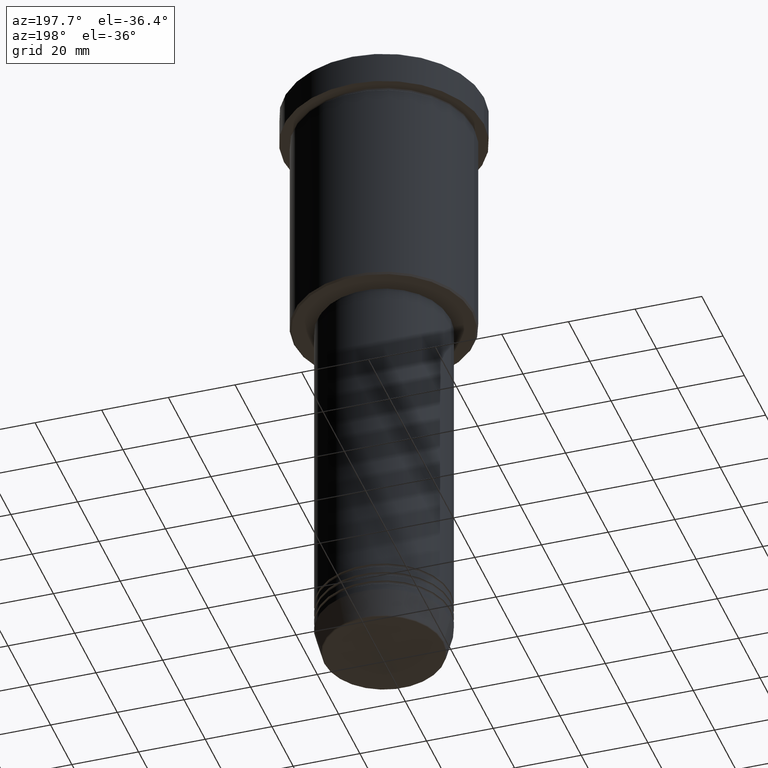
[diagram: clean part render]
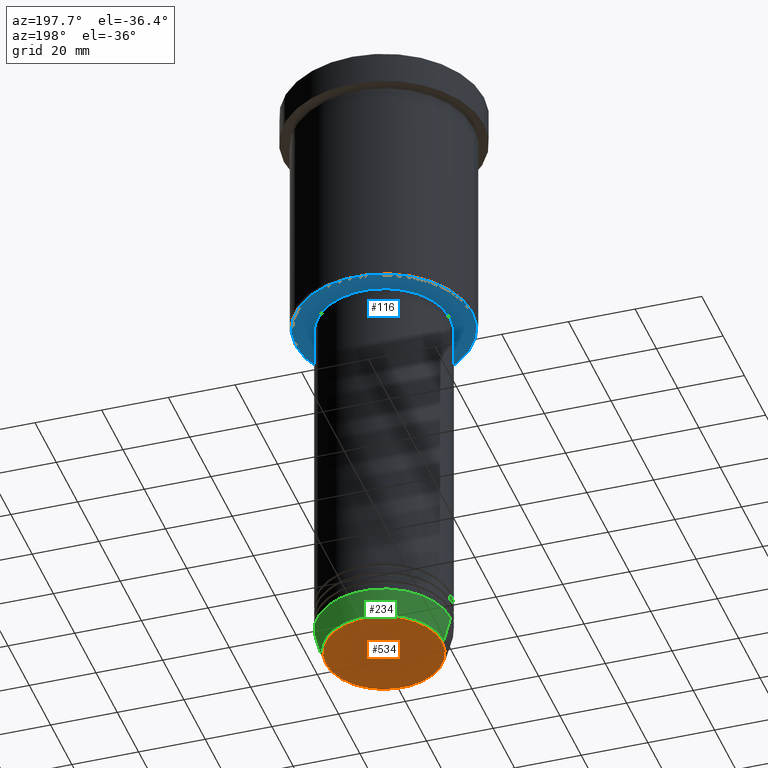
[diagram: same view with three faces highlighted in distinct colors, each labeled with its STEP entity id]
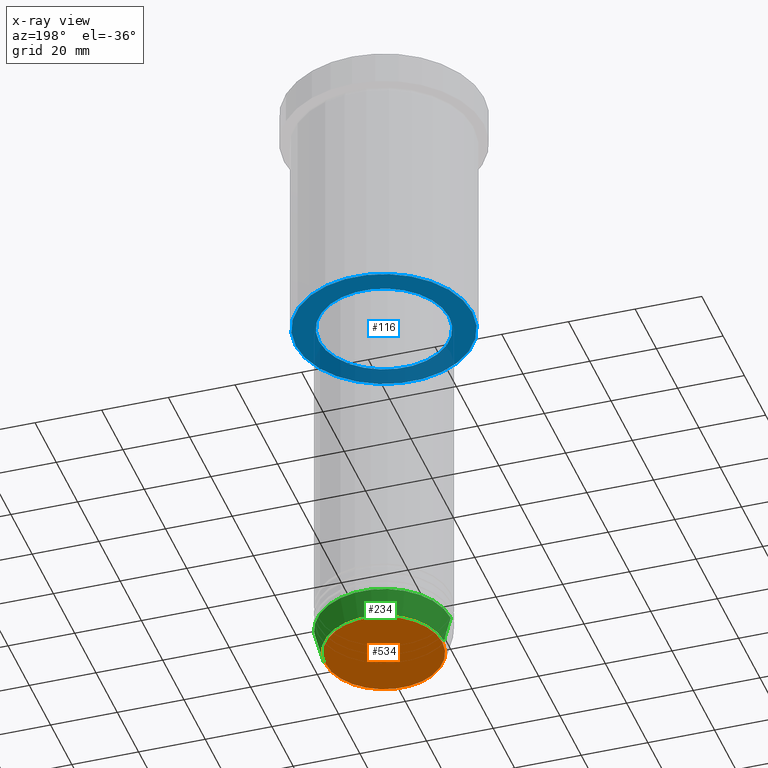
[diagram: x-ray of the same camera — body ghosted, the three highlighted faces saturated]
A machine part, auxiliary view with three faces highlighted in distinct colors.
The next image is the same camera in x-ray (body ghosted, the three faces saturated) — at least one of them is partly hidden behind the body in this view.
Their STEP definitions:

[orange] entity #534 — the highlighted planar face has unit normal (0, -0, 1).
#12 = CIRCLE ( 'NONE', #297, 17.47274296656154036 ) ;
#16 = ORIENTED_EDGE ( 'NONE', *, *, #765, .T. ) ;
#26 = EDGE_CURVE ( 'NONE', #722, #860, #241, .T. ) ;
#57 = DIRECTION ( 'NONE',  ( 1.000000000000000000, 0.000000000000000000, 0.000000000000000000 ) ) ;
#72 = DIRECTION ( 'NONE',  ( 1.000000000000000000, 0.000000000000000000, 0.000000000000000000 ) ) ;
#162 = CARTESIAN_POINT ( 'NONE',  ( 0.000000000000000000, 0.000000000000000000, -191.0000000000000000 ) ) ;
#179 = CARTESIAN_POINT ( 'NONE',  ( 0.000000000000000000, 0.000000000000000000, -191.0000000000000000 ) ) ;
#191 = DIRECTION ( 'NONE',  ( 0.000000000000000000, -0.000000000000000000, 1.000000000000000000 ) ) ;
#241 = CIRCLE ( 'NONE', #386, 17.47274296656154036 ) ;
#269 = CARTESIAN_POINT ( 'NONE',  ( 17.47274296656154036, 0.000000000000000000, -191.0000000000000000 ) ) ;
#270 = DIRECTION ( 'NONE',  ( 1.000000000000000000, 0.000000000000000000, 0.000000000000000000 ) ) ;
#297 = AXIS2_PLACEMENT_3D ( 'NONE', #162, #430, #57 ) ;
#386 = AXIS2_PLACEMENT_3D ( 'NONE', #179, #447, #270 ) ;
#430 = DIRECTION ( 'NONE',  ( 0.000000000000000000, 0.000000000000000000, -1.000000000000000000 ) ) ;
#447 = DIRECTION ( 'NONE',  ( 0.000000000000000000, 0.000000000000000000, -1.000000000000000000 ) ) ;
#534 = ADVANCED_FACE ( 'NONE', ( #894 ), #890, .F. ) ;
#579 = ORIENTED_EDGE ( 'NONE', *, *, #26, .T. ) ;
#628 = CARTESIAN_POINT ( 'NONE',  ( 0.000000000000000000, 0.000000000000000000, -191.0000000000000000 ) ) ;
#675 = EDGE_LOOP ( 'NONE', ( #16, #579 ) ) ;
#722 = VERTEX_POINT ( 'NONE', #948 ) ;
#765 = EDGE_CURVE ( 'NONE', #860, #722, #12, .T. ) ;
#860 = VERTEX_POINT ( 'NONE', #269 ) ;
#890 = PLANE ( 'NONE',  #925 ) ;
#894 = FACE_OUTER_BOUND ( 'NONE', #675, .T. ) ;
#925 = AXIS2_PLACEMENT_3D ( 'NONE', #628, #191, #72 ) ;
#948 = CARTESIAN_POINT ( 'NONE',  ( -17.47274296656154036, 2.169366823916868503E-15, -191.0000000000000000 ) ) ;

[blue] entity #116 — the highlighted planar face has unit normal (0, 0, -1).
#42 = FACE_OUTER_BOUND ( 'NONE', #560, .T. ) ;
#68 = AXIS2_PLACEMENT_3D ( 'NONE', #515, #889, #799 ) ;
#73 = CARTESIAN_POINT ( 'NONE',  ( -26.50000000000001066, 3.275930187719170735E-15, -76.00000000000001421 ) ) ;
#116 = ADVANCED_FACE ( 'NONE', ( #42, #500 ), #1066, .T. ) ;
#139 = DIRECTION ( 'NONE',  ( -1.000000000000000000, 0.000000000000000000, 0.000000000000000000 ) ) ;
#165 = DIRECTION ( 'NONE',  ( 1.000000000000000000, 0.000000000000000000, 0.000000000000000000 ) ) ;
#203 = VERTEX_POINT ( 'NONE', #1109 ) ;
#223 = AXIS2_PLACEMENT_3D ( 'NONE', #981, #334, #139 ) ;
#257 = DIRECTION ( 'NONE',  ( -1.000000000000000000, 0.000000000000000000, 0.000000000000000000 ) ) ;
#261 = AXIS2_PLACEMENT_3D ( 'NONE', #443, #807, #165 ) ;
#307 = CARTESIAN_POINT ( 'NONE',  ( 0.000000000000000000, 27.00000000000000355, -76.00000000000001421 ) ) ;
#334 = DIRECTION ( 'NONE',  ( 0.000000000000000000, 0.000000000000000000, -1.000000000000000000 ) ) ;
#335 = DIRECTION ( 'NONE',  ( 0.000000000000000000, 0.000000000000000000, -1.000000000000000000 ) ) ;
#360 = VERTEX_POINT ( 'NONE', #73 ) ;
#382 = ORIENTED_EDGE ( 'NONE', *, *, #607, .T. ) ;
#387 = AXIS2_PLACEMENT_3D ( 'NONE', #307, #875, #588 ) ;
#419 = CARTESIAN_POINT ( 'NONE',  ( 26.50000000000001066, 0.000000000000000000, -76.00000000000001421 ) ) ;
#442 = CIRCLE ( 'NONE', #223, 26.50000000000001066 ) ;
#443 = CARTESIAN_POINT ( 'NONE',  ( 0.000000000000000000, 0.000000000000000000, -76.00000000000001421 ) ) ;
#459 = EDGE_CURVE ( 'NONE', #763, #360, #442, .T. ) ;
#500 = FACE_BOUND ( 'NONE', #1171, .T. ) ;
#515 = CARTESIAN_POINT ( 'NONE',  ( 0.000000000000000000, 0.000000000000000000, -76.00000000000001421 ) ) ;
#560 = EDGE_LOOP ( 'NONE', ( #660, #382 ) ) ;
#588 = DIRECTION ( 'NONE',  ( -1.000000000000000000, 0.000000000000000000, -0.000000000000000000 ) ) ;
#593 = CARTESIAN_POINT ( 'NONE',  ( 0.000000000000000000, 0.000000000000000000, -76.00000000000001421 ) ) ;
#607 = EDGE_CURVE ( 'NONE', #360, #763, #986, .T. ) ;
#660 = ORIENTED_EDGE ( 'NONE', *, *, #459, .T. ) ;
#755 = CIRCLE ( 'NONE', #68, 19.50000000000000000 ) ;
#763 = VERTEX_POINT ( 'NONE', #419 ) ;
#799 = DIRECTION ( 'NONE',  ( 1.000000000000000000, 0.000000000000000000, 0.000000000000000000 ) ) ;
#807 = DIRECTION ( 'NONE',  ( -0.000000000000000000, -0.000000000000000000, 1.000000000000000000 ) ) ;
#839 = CARTESIAN_POINT ( 'NONE',  ( -19.50000000000000000, 2.388061258337338939E-15, -76.00000000000001421 ) ) ;
#875 = DIRECTION ( 'NONE',  ( 0.000000000000000000, 0.000000000000000000, -1.000000000000000000 ) ) ;
#889 = DIRECTION ( 'NONE',  ( -0.000000000000000000, -0.000000000000000000, 1.000000000000000000 ) ) ;
#899 = EDGE_CURVE ( 'NONE', #203, #1055, #755, .T. ) ;
#964 = EDGE_CURVE ( 'NONE', #1055, #203, #1160, .T. ) ;
#981 = CARTESIAN_POINT ( 'NONE',  ( 0.000000000000000000, 0.000000000000000000, -76.00000000000001421 ) ) ;
#986 = CIRCLE ( 'NONE', #1004, 26.50000000000001066 ) ;
#1001 = ORIENTED_EDGE ( 'NONE', *, *, #964, .T. ) ;
#1004 = AXIS2_PLACEMENT_3D ( 'NONE', #593, #335, #257 ) ;
#1055 = VERTEX_POINT ( 'NONE', #839 ) ;
#1066 = PLANE ( 'NONE',  #387 ) ;
#1109 = CARTESIAN_POINT ( 'NONE',  ( 19.50000000000000000, 0.000000000000000000, -76.00000000000001421 ) ) ;
#1119 = ORIENTED_EDGE ( 'NONE', *, *, #899, .T. ) ;
#1160 = CIRCLE ( 'NONE', #261, 19.50000000000000000 ) ;
#1171 = EDGE_LOOP ( 'NONE', ( #1119, #1001 ) ) ;

[green] entity #234 — the highlighted conical surface has half-angle 15 deg.
#5 = DIRECTION ( 'NONE',  ( 1.000000000000000000, 0.000000000000000000, 0.000000000000000000 ) ) ;
#44 = DIRECTION ( 'NONE',  ( 1.000000000000000000, 0.000000000000000000, 0.000000000000000000 ) ) ;
#76 = CARTESIAN_POINT ( 'NONE',  ( 17.95570587970607690, 0.000000000000000000, -190.6294095225512706 ) ) ;
#102 = CARTESIAN_POINT ( 'NONE',  ( 0.000000000000000000, 0.000000000000000000, -183.0000000000000284 ) ) ;
#121 = CARTESIAN_POINT ( 'NONE',  ( 20.00000000000000000, 0.000000000000000000, -183.0000000000000284 ) ) ;
#190 = DIRECTION ( 'NONE',  ( 1.000000000000000000, 0.000000000000000000, 0.000000000000000000 ) ) ;
#234 = ADVANCED_FACE ( 'NONE', ( #620 ), #826, .T. ) ;
#272 = CARTESIAN_POINT ( 'NONE',  ( -17.95570587970607690, 2.324116685748020977E-15, -190.6294095225512706 ) ) ;
#276 = VECTOR ( 'NONE', #474, 1000.000000000000000 ) ;
#291 = LINE ( 'NONE', #121, #276 ) ;
#305 = CARTESIAN_POINT ( 'NONE',  ( -20.00000000000000000, 2.449293598294706513E-15, -183.0000000000000284 ) ) ;
#315 = CIRCLE ( 'NONE', #601, 20.00000000000000000 ) ;
#323 = EDGE_CURVE ( 'NONE', #868, #546, #291, .T. ) ;
#341 = AXIS2_PLACEMENT_3D ( 'NONE', #638, #485, #44 ) ;
#410 = VECTOR ( 'NONE', #661, 1000.000000000000000 ) ;
#456 = DIRECTION ( 'NONE',  ( -0.000000000000000000, -0.000000000000000000, 1.000000000000000000 ) ) ;
#474 = DIRECTION ( 'NONE',  ( 0.2588190451025213501, 0.000000000000000000, 0.9659258262890680902 ) ) ;
#485 = DIRECTION ( 'NONE',  ( -0.000000000000000000, -0.000000000000000000, 1.000000000000000000 ) ) ;
#488 = VERTEX_POINT ( 'NONE', #272 ) ;
#546 = VERTEX_POINT ( 'NONE', #901 ) ;
#601 = AXIS2_PLACEMENT_3D ( 'NONE', #1168, #993, #190 ) ;
#619 = VERTEX_POINT ( 'NONE', #737 ) ;
#620 = FACE_OUTER_BOUND ( 'NONE', #1137, .T. ) ;
#638 = CARTESIAN_POINT ( 'NONE',  ( 0.000000000000000000, 0.000000000000000000, -190.6294095225512706 ) ) ;
#652 = ORIENTED_EDGE ( 'NONE', *, *, #779, .T. ) ;
#661 = DIRECTION ( 'NONE',  ( -0.2588190451025213501, 3.169619151431772337E-17, 0.9659258262890680902 ) ) ;
#716 = ORIENTED_EDGE ( 'NONE', *, *, #923, .F. ) ;
#737 = CARTESIAN_POINT ( 'NONE',  ( -20.00000000000000000, 2.449293598294706513E-15, -183.0000000000000284 ) ) ;
#779 = EDGE_CURVE ( 'NONE', #868, #488, #1111, .T. ) ;
#826 = CONICAL_SURFACE ( 'NONE', #1158, 20.00000000000000000, 0.2617993877991500740 ) ;
#861 = ORIENTED_EDGE ( 'NONE', *, *, #323, .F. ) ;
#868 = VERTEX_POINT ( 'NONE', #76 ) ;
#901 = CARTESIAN_POINT ( 'NONE',  ( 20.00000000000000000, 0.000000000000000000, -183.0000000000000284 ) ) ;
#923 = EDGE_CURVE ( 'NONE', #546, #619, #315, .T. ) ;
#993 = DIRECTION ( 'NONE',  ( -0.000000000000000000, -0.000000000000000000, 1.000000000000000000 ) ) ;
#1111 = CIRCLE ( 'NONE', #341, 17.95570587970607690 ) ;
#1112 = EDGE_CURVE ( 'NONE', #488, #619, #1133, .T. ) ;
#1133 = LINE ( 'NONE', #305, #410 ) ;
#1137 = EDGE_LOOP ( 'NONE', ( #652, #1143, #716, #861 ) ) ;
#1143 = ORIENTED_EDGE ( 'NONE', *, *, #1112, .T. ) ;
#1158 = AXIS2_PLACEMENT_3D ( 'NONE', #102, #456, #5 ) ;
#1168 = CARTESIAN_POINT ( 'NONE',  ( 0.000000000000000000, 0.000000000000000000, -183.0000000000000284 ) ) ;